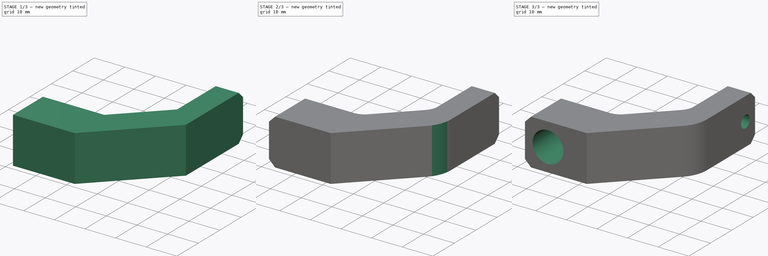
[diagram: build sequence overview — one tinted view per stage of 3, left to right]
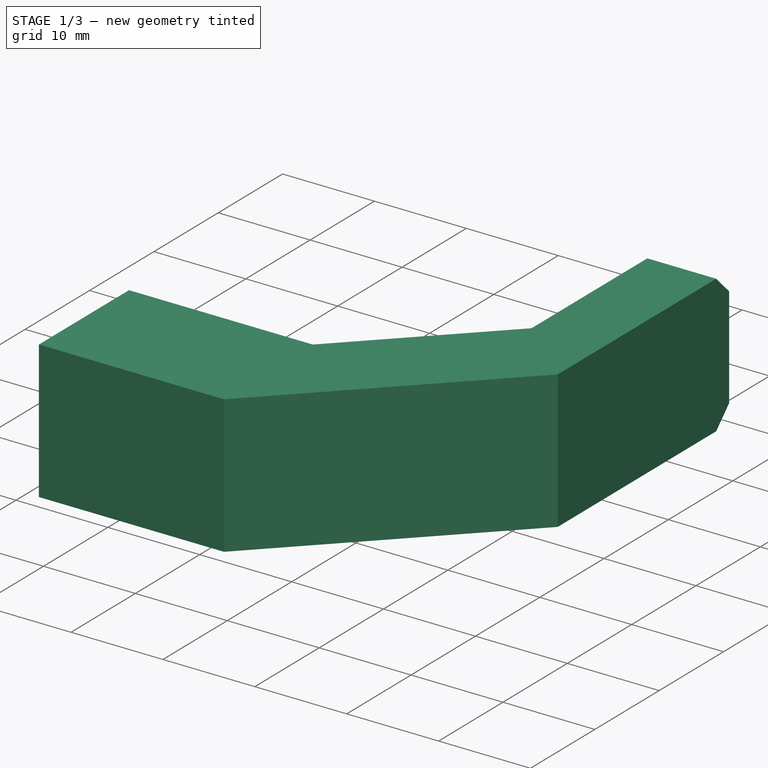
[diagram: stage 1 of 3 — iso view after this stage's code; geometry added in this stage tinted green]
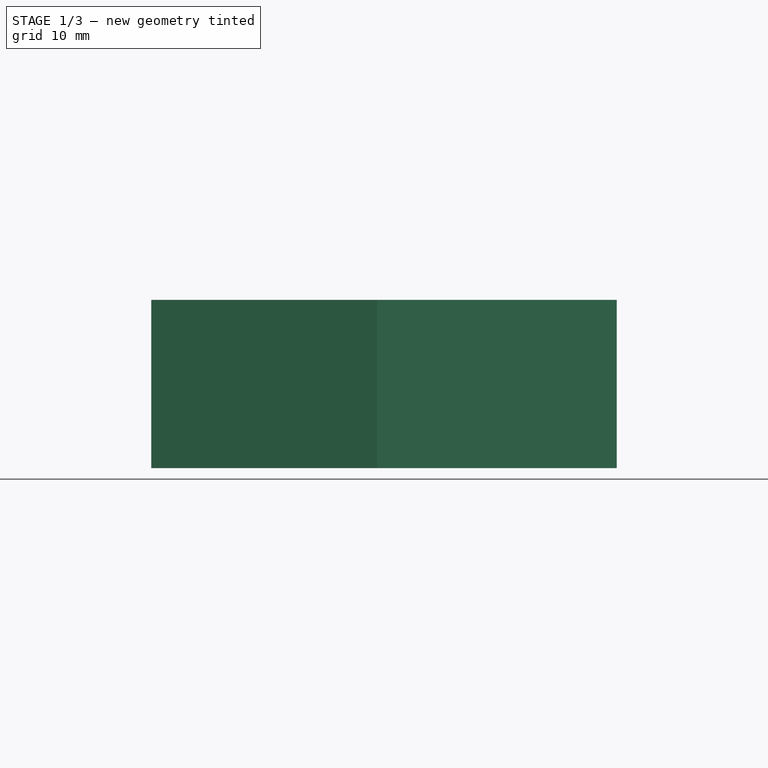
[diagram: stage 1 of 3 — front view after this stage's code; geometry added in this stage tinted green]
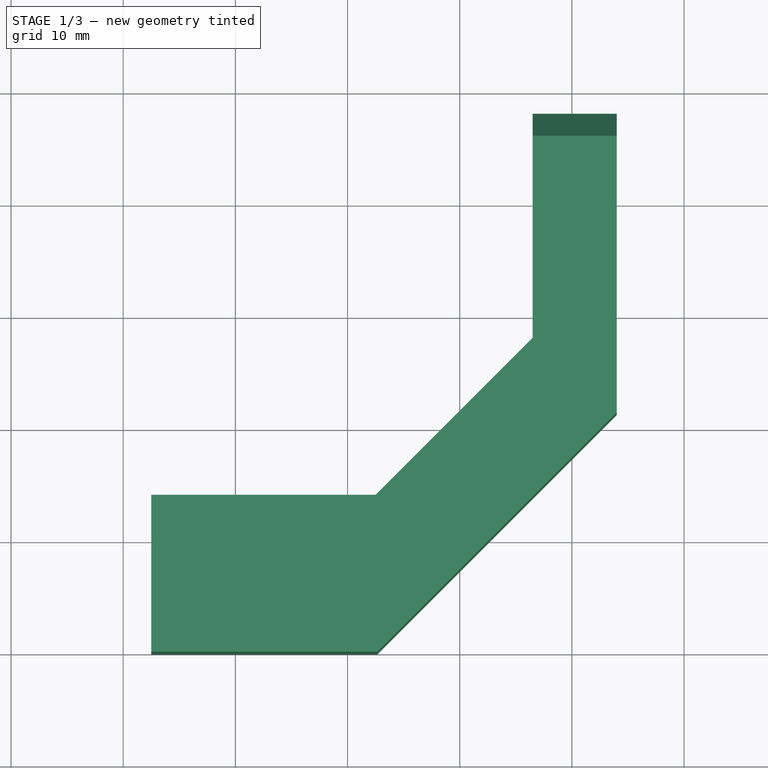
[diagram: stage 1 of 3 — top view after this stage's code; geometry added in this stage tinted green]
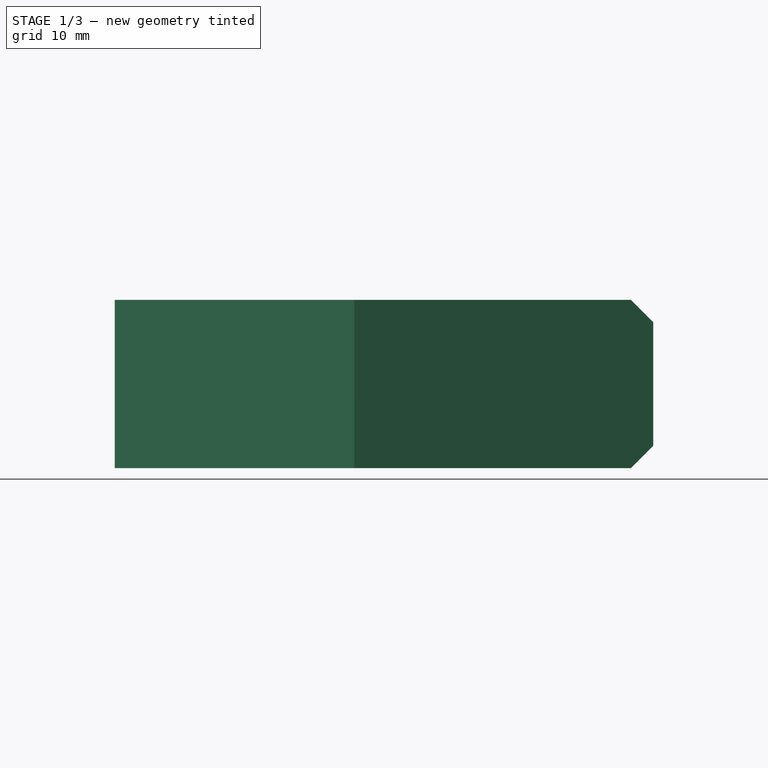
[diagram: stage 1 of 3 — right view after this stage's code; geometry added in this stage tinted green]
FCSTD DOCUMENT  (FreeCAD 0.14R3310 (Git))
Label: 52. SOPORTE TUBO TEFLON 001
License: CC-BY 3.0
LicenseURL: http://creativecommons.org/licenses/by/3.0/
objects: Sketcher::SketchObject×3, PartDesign::Chamfer×2, PartDesign::Fillet×2, PartDesign::Pocket×2, PartDesign::Pad×1
note: 13 computed .brp shape members not serialized (recipe doc carries the construction recipe); baked Part::Feature solids carry a one-line shape summary decoded from their .brp

FEATURE [Sketcher::SketchObject] Sketch
  sketch-geometry (8):
    g0: LineSegment StartX=-7.5 StartY=0 StartZ=0 EndX=12.64 EndY=0 EndZ=0
    g1: LineSegment StartX=-7.5 StartY=0 StartZ=0 EndX=-7.5 EndY=14 EndZ=0
    g2: LineSegment StartX=12.64 StartY=0 StartZ=0 EndX=34 EndY=21.36 EndZ=0
    g3: LineSegment StartX=34 StartY=21.36 StartZ=0 EndX=34 EndY=48 EndZ=0
    g4: LineSegment StartX=34 StartY=48 StartZ=0 EndX=26.5 EndY=48 EndZ=0
    g5: LineSegment StartX=-7.5 StartY=14 StartZ=0 EndX=12.4979 EndY=14 EndZ=0
    g6: LineSegment StartX=12.4979 StartY=14 StartZ=0 EndX=26.5 EndY=28.0021 EndZ=0
    g7: LineSegment StartX=26.5 StartY=48 StartZ=0 EndX=26.5 EndY=28.0021 EndZ=0
  constraints (24):
    c: PointOnObject(g0,g-1)
    c: PointOnObject(g0,g-1)
    c: Distance(g0) = 20.14
    c: Distance(g-1,g0) = 7.5
    c: Coincident(g1,g0)
    c: Vertical(g1)
    c: Distance(g1) = 14
    c: Angle(g2,g-1) = 2.35619
    c: Coincident(g3,g2)
    c: Vertical(g3)
    c: DistanceX(g-2,g2) = 34
    c: DistanceY(g-1,g3) = 48
    c: Coincident(g2,g0)
    c: Coincident(g4,g3)
    c: Horizontal(g4)
    c: Distance(g4) = 7.5
    c: Coincident(g5,g1)
    c: Horizontal(g5)
    c: Coincident(g6,g5)
    c: Coincident(g7,g4)
    c: Coincident(g7,g6)
    c: Vertical(g7)
    c: Parallel(g6,g2)
    c: Distance(g5,g2) = 10
FEATURE [PartDesign::Pad] Pad
  Length = 15
  Length2 = 100
  Sketch = -> Sketch
  Type = 0
FEATURE [PartDesign::Chamfer] Chamfer
  Base = -> Pad [Edge13,Edge12]
  Size = 2
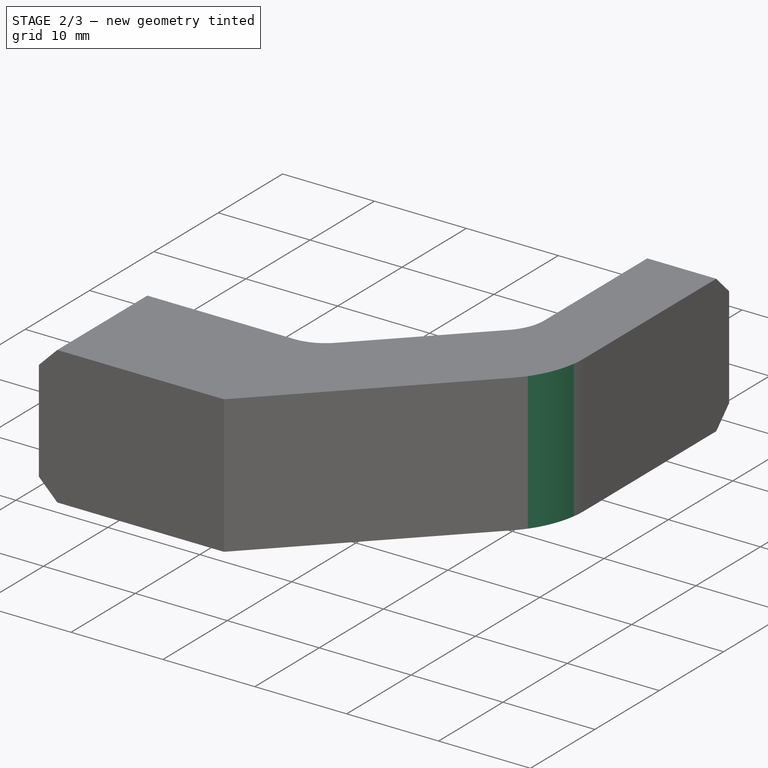
[diagram: stage 2 of 3 — iso view after this stage's code; geometry added in this stage tinted green]
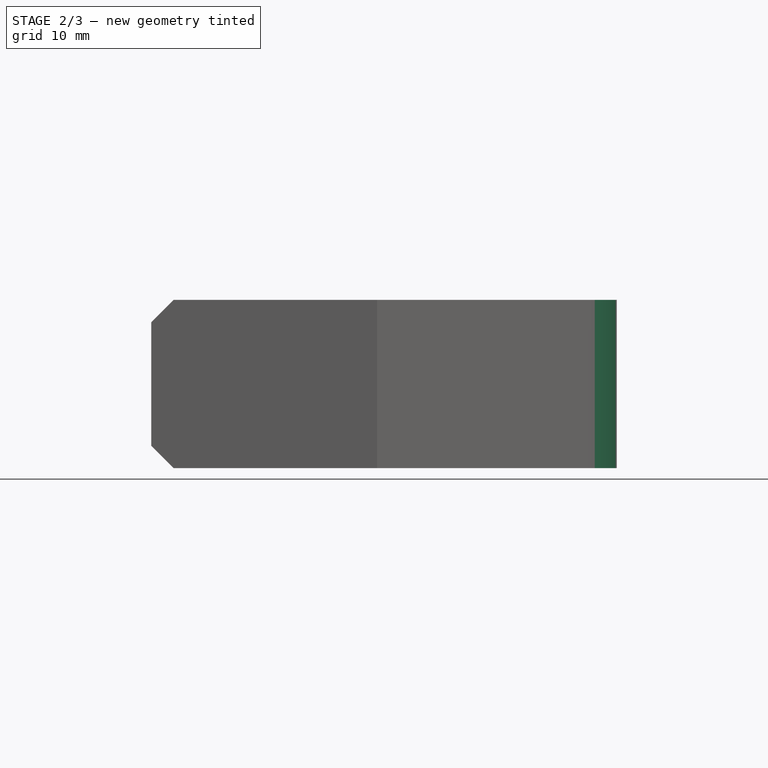
[diagram: stage 2 of 3 — front view after this stage's code; geometry added in this stage tinted green]
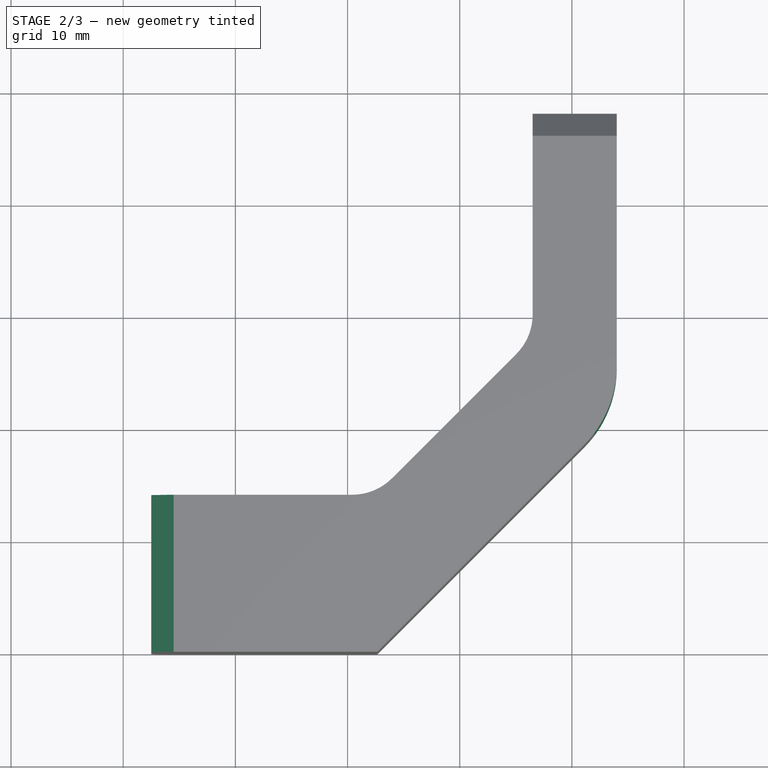
[diagram: stage 2 of 3 — top view after this stage's code; geometry added in this stage tinted green]
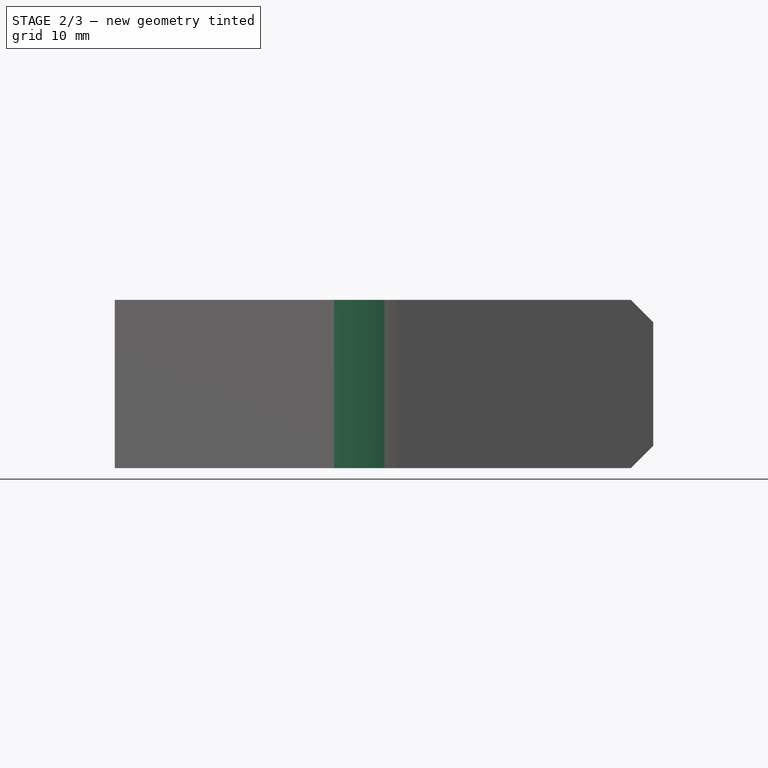
[diagram: stage 2 of 3 — right view after this stage's code; geometry added in this stage tinted green]
FEATURE [PartDesign::Chamfer] Chamfer001
  Base = -> Chamfer [Edge24,Edge18]
  Size = 2
FEATURE [PartDesign::Fillet] Fillet
  Base = -> Chamfer001 [Edge26,Edge21]
  Radius = 5
FEATURE [PartDesign::Fillet] Fillet001
  Base = -> Fillet [Edge28]
  Radius = 10
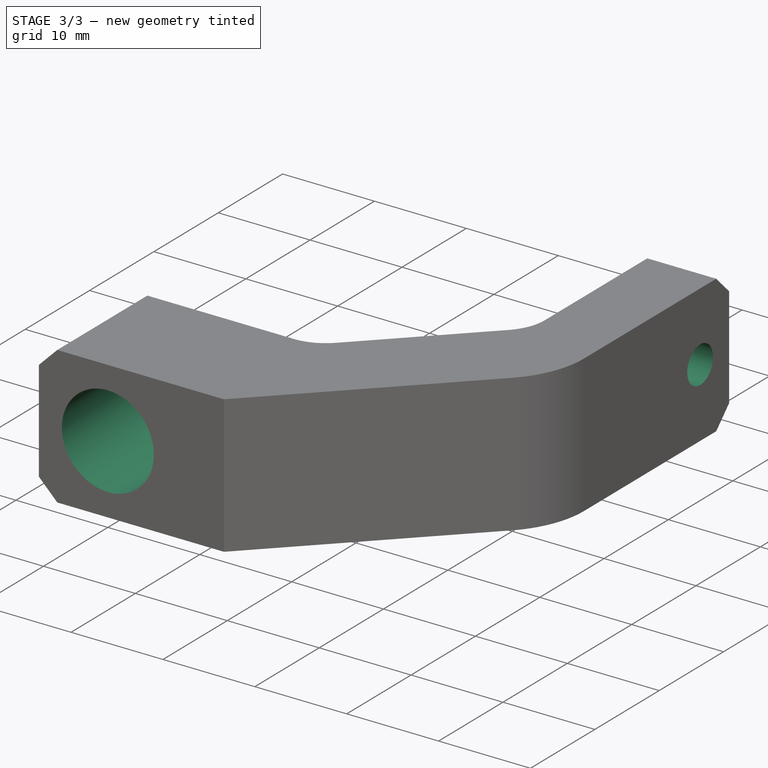
[diagram: stage 3 of 3 — iso view after this stage's code; geometry added in this stage tinted green]
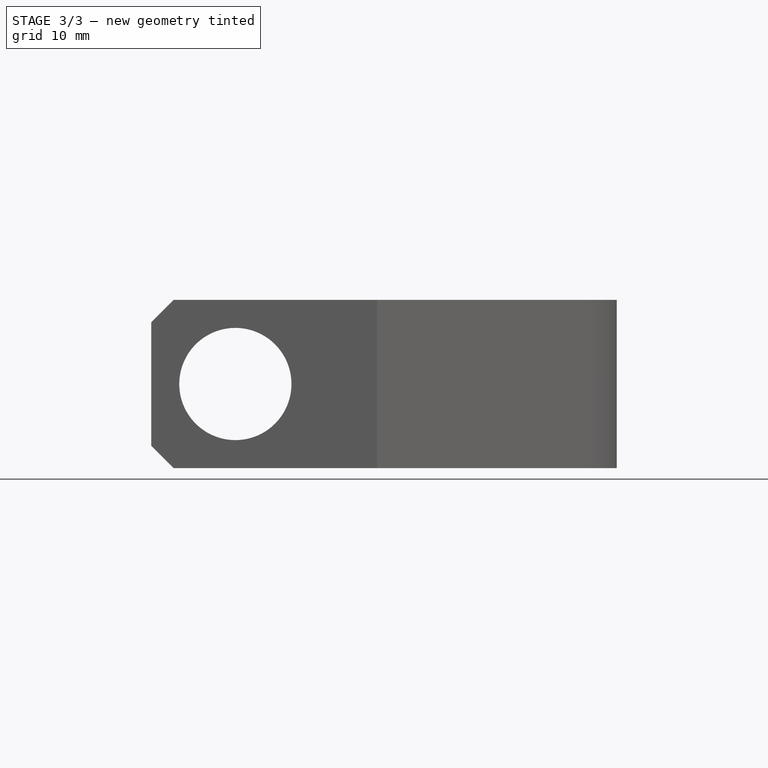
[diagram: stage 3 of 3 — front view after this stage's code; geometry added in this stage tinted green]
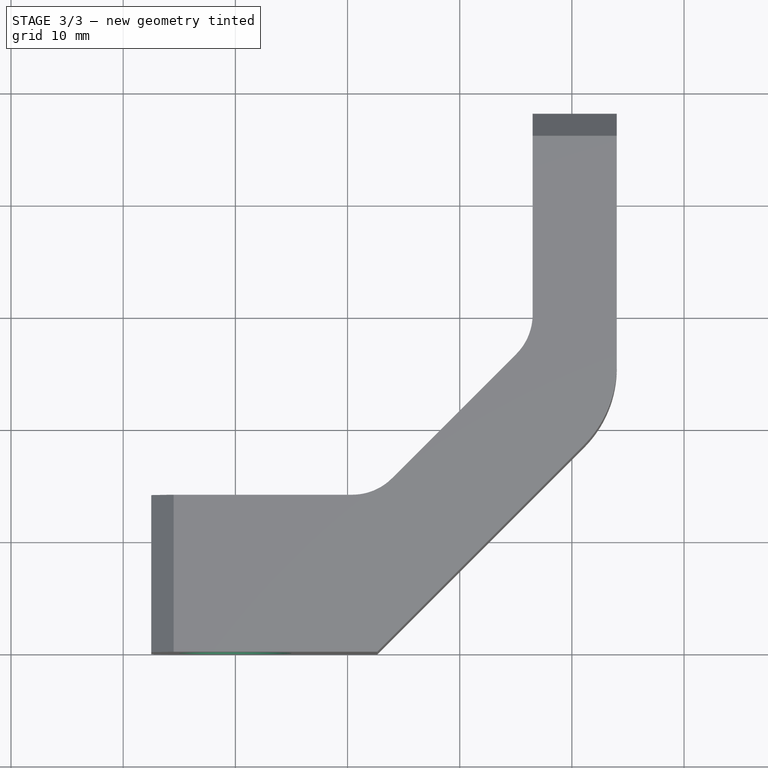
[diagram: stage 3 of 3 — top view after this stage's code; geometry added in this stage tinted green]
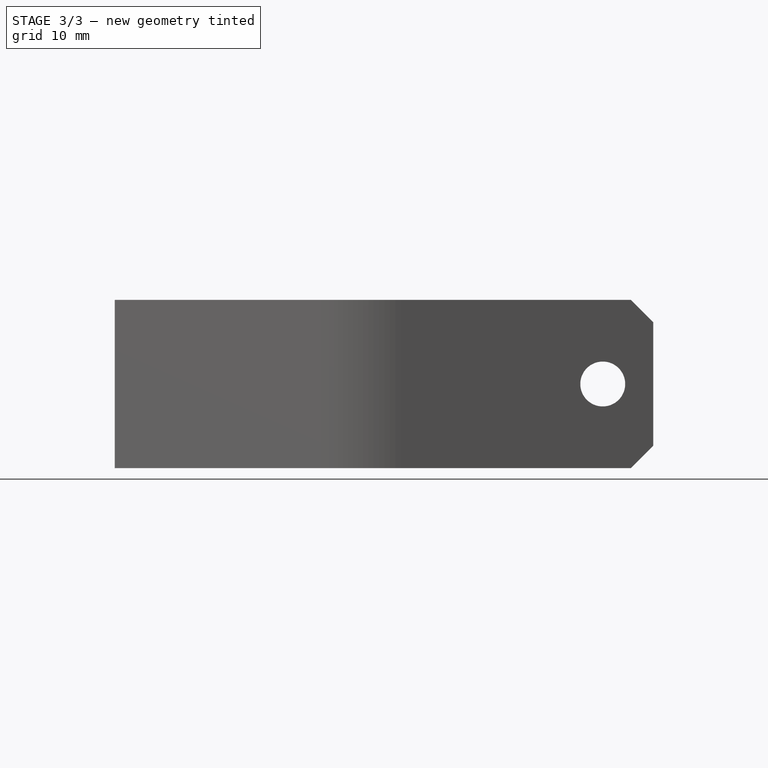
[diagram: stage 3 of 3 — right view after this stage's code; geometry added in this stage tinted green]
FEATURE [Sketcher::SketchObject] Sketch001
  ExternalGeometry = -> [Fillet001]
  Placement = pos=(0,14,0) rot=(0,0.707107,0.707107;3.14159rad)
  Support = -> Fillet001 [Face8]
  sketch-geometry (1):
    g0: Circle CenterX=0 CenterY=7.5 CenterZ=0 NormalX=0 NormalY=0 NormalZ=1 Radius=5
  constraints (3):
    c: DistanceY(g-1,g0) = 7.5
    c: Distance(g0,g-3) = 7.5
    c: Radius(g0) = 5
FEATURE [PartDesign::Pocket] Pocket
  Length = 14
  Sketch = -> Sketch001
  Type = 0
FEATURE [Sketcher::SketchObject] Sketch002
  ExternalGeometry = -> [Pocket]
  Placement = pos=(26.5,0,0) rot=(0.57735,-0.57735,-0.57735;2.0944rad)
  Support = -> Pocket [Face9]
  sketch-geometry (1):
    g0: Circle CenterX=-43.5 CenterY=7.5 CenterZ=0 NormalX=0 NormalY=0 NormalZ=1 Radius=2
  constraints (3):
    c: Radius(g0) = 2
    c: Distance(g0,g-3) = 4.5
    c: DistanceY(g-1,g0) = 7.5
FEATURE [PartDesign::Pocket] Pocket001
  Length = 0
  Sketch = -> Sketch002
  Type = 2
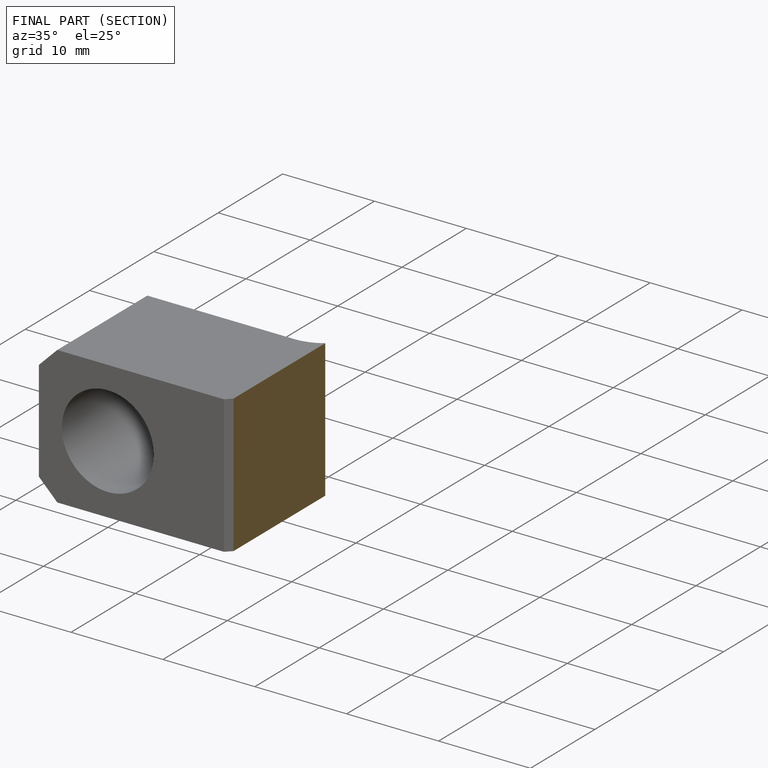
[diagram: finished part — half-section view (interior)]
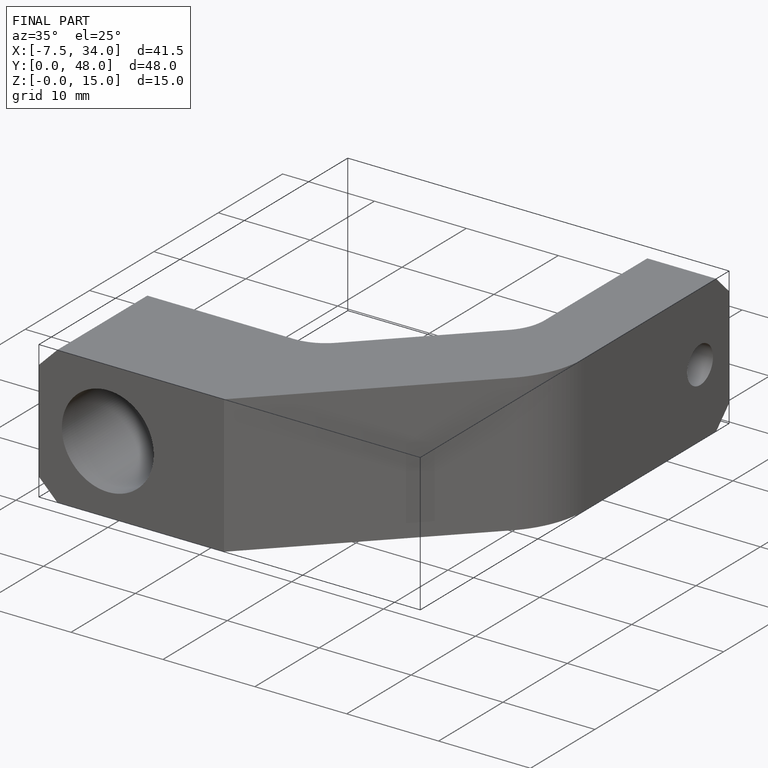
[diagram: finished part — iso view with bounding-box wireframe]
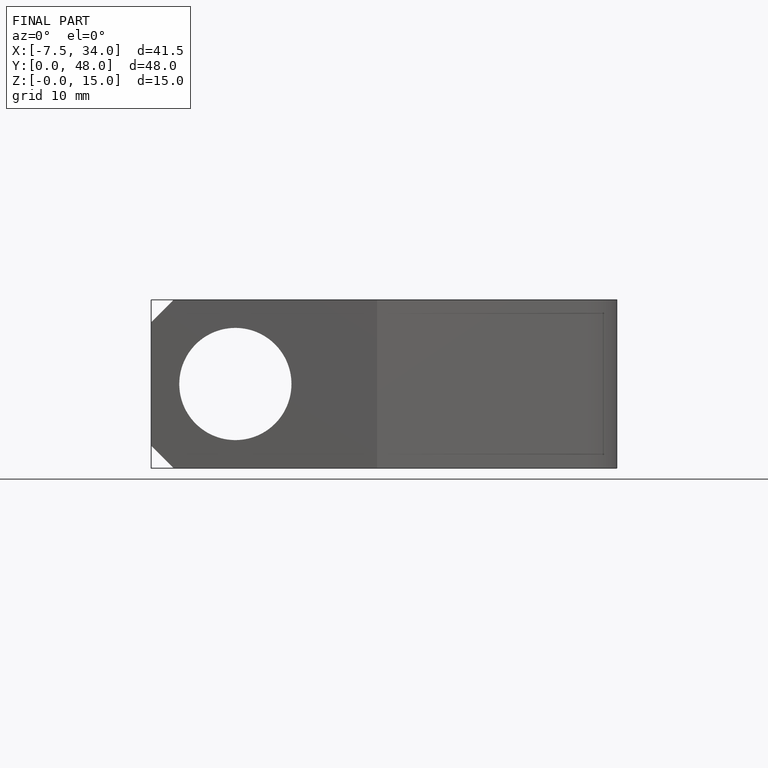
[diagram: finished part — front view with bounding-box wireframe]
